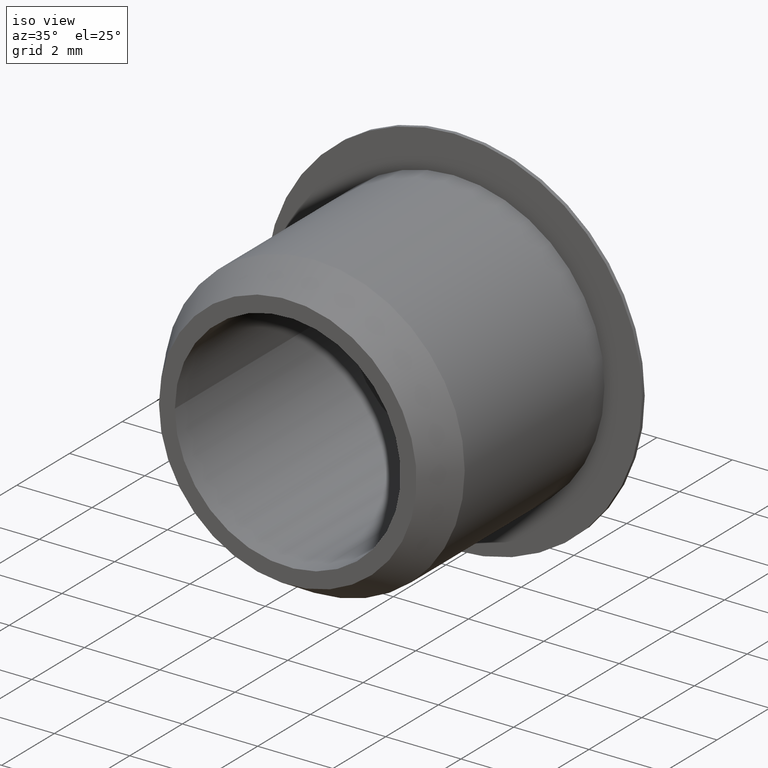
[diagram: clean part render]
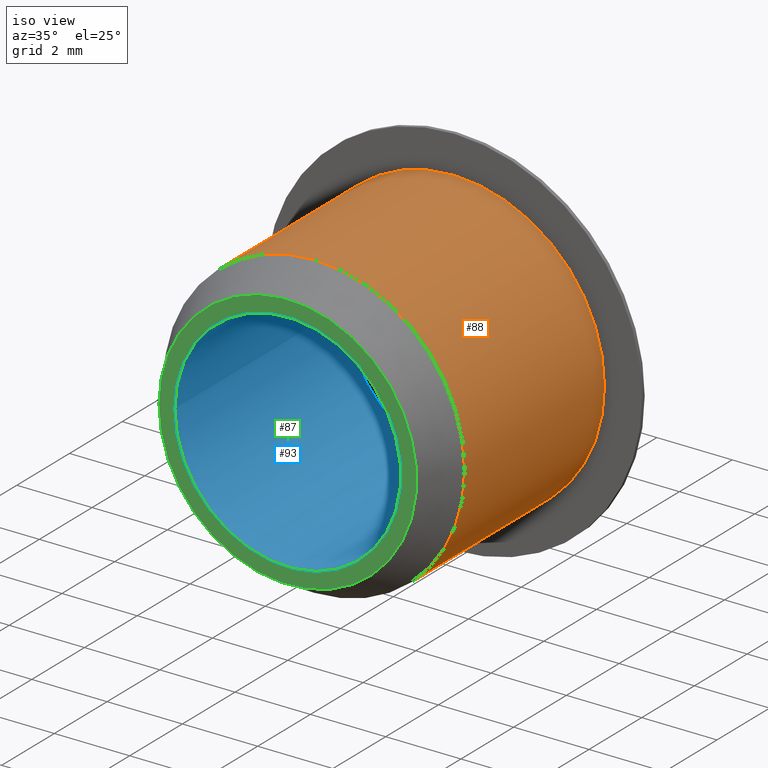
[diagram: same view with three faces highlighted in distinct colors, each labeled with its STEP entity id]
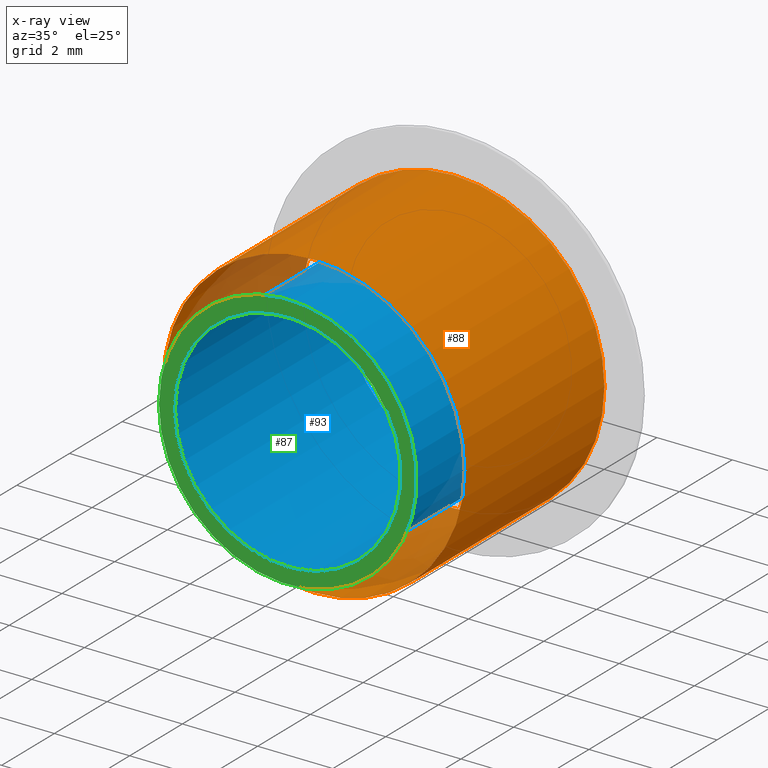
[diagram: x-ray of the same camera — body ghosted, the three highlighted faces saturated]
A machine part, iso view with three faces highlighted in distinct colors.
The next image is the same camera in x-ray (body ghosted, the three faces saturated) — at least one of them is partly hidden behind the body in this view.
Their STEP definitions:

[orange] entity #88 — the highlighted cylindrical surface (bore or boss wall) has radius 4 mm, axis along (0, 1, 0).
#16=CYLINDRICAL_SURFACE('',#101,4.);
#24=FACE_BOUND('',#41,.T.);
#30=FACE_OUTER_BOUND('',#40,.T.);
#40=EDGE_LOOP('',(#75));
#41=EDGE_LOOP('',(#76));
#51=CIRCLE('',#98,4.);
#53=CIRCLE('',#102,4.);
#58=VERTEX_POINT('',#147);
#60=VERTEX_POINT('',#153);
#65=EDGE_CURVE('',#58,#58,#51,.T.);
#67=EDGE_CURVE('',#60,#60,#53,.T.);
#75=ORIENTED_EDGE('',*,*,#67,.F.);
#76=ORIENTED_EDGE('',*,*,#65,.F.);
#88=ADVANCED_FACE('',(#30,#24),#16,.T.);
#98=AXIS2_PLACEMENT_3D('',#148,#117,#118);
#101=AXIS2_PLACEMENT_3D('',#152,#123,#124);
#102=AXIS2_PLACEMENT_3D('',#154,#125,#126);
#117=DIRECTION('center_axis',(0.,-1.,0.));
#118=DIRECTION('ref_axis',(1.,0.,0.));
#123=DIRECTION('center_axis',(0.,1.,0.));
#124=DIRECTION('ref_axis',(-1.,0.,0.));
#125=DIRECTION('center_axis',(0.,1.,0.));
#126=DIRECTION('ref_axis',(1.,0.,0.));
#147=CARTESIAN_POINT('',(-4.,1.,-4.89858719658941E-16));
#148=CARTESIAN_POINT('Origin',(0.,1.,0.));
#152=CARTESIAN_POINT('Origin',(0.,3.15,0.));
#153=CARTESIAN_POINT('',(-4.,6.3,0.));
#154=CARTESIAN_POINT('Origin',(0.,6.3,0.));

[blue] entity #93 — the highlighted cylindrical surface (bore or boss wall) has radius 3 mm, axis along (0, 1, 0).
#18=CYLINDRICAL_SURFACE('',#110,3.);
#27=FACE_BOUND('',#49,.T.);
#35=FACE_OUTER_BOUND('',#48,.T.);
#48=EDGE_LOOP('',(#83));
#49=EDGE_LOOP('',(#84));
#52=CIRCLE('',#100,3.);
#56=CIRCLE('',#109,3.);
#59=VERTEX_POINT('',#150);
#63=VERTEX_POINT('',#163);
#66=EDGE_CURVE('',#59,#59,#52,.T.);
#70=EDGE_CURVE('',#63,#63,#56,.T.);
#83=ORIENTED_EDGE('',*,*,#66,.F.);
#84=ORIENTED_EDGE('',*,*,#70,.T.);
#93=ADVANCED_FACE('',(#35,#27),#18,.F.);
#100=AXIS2_PLACEMENT_3D('',#151,#121,#122);
#109=AXIS2_PLACEMENT_3D('',#164,#139,#140);
#110=AXIS2_PLACEMENT_3D('',#165,#141,#142);
#121=DIRECTION('center_axis',(0.,1.,0.));
#122=DIRECTION('ref_axis',(1.,0.,0.));
#139=DIRECTION('center_axis',(0.,1.,0.));
#140=DIRECTION('ref_axis',(1.,0.,0.));
#141=DIRECTION('center_axis',(0.,1.,0.));
#142=DIRECTION('ref_axis',(-1.,0.,0.));
#150=CARTESIAN_POINT('',(-3.,-4.28626379701573E-16,0.));
#151=CARTESIAN_POINT('Origin',(0.,-5.55111512312578E-16,0.));
#163=CARTESIAN_POINT('',(-3.,6.5,0.));
#164=CARTESIAN_POINT('Origin',(0.,6.5,0.));
#165=CARTESIAN_POINT('Origin',(0.,3.25,0.));

[green] entity #87 — the highlighted planar face has unit normal (0, -1, 0).
#19=PLANE('',#99);
#23=FACE_BOUND('',#39,.T.);
#29=FACE_OUTER_BOUND('',#38,.T.);
#38=EDGE_LOOP('',(#73));
#39=EDGE_LOOP('',(#74));
#50=CIRCLE('',#97,3.42264973081037);
#52=CIRCLE('',#100,3.);
#57=VERTEX_POINT('',#145);
#59=VERTEX_POINT('',#150);
#64=EDGE_CURVE('',#57,#57,#50,.T.);
#66=EDGE_CURVE('',#59,#59,#52,.T.);
#73=ORIENTED_EDGE('',*,*,#64,.F.);
#74=ORIENTED_EDGE('',*,*,#66,.T.);
#87=ADVANCED_FACE('',(#29,#23),#19,.T.);
#97=AXIS2_PLACEMENT_3D('',#146,#115,#116);
#99=AXIS2_PLACEMENT_3D('',#149,#119,#120);
#100=AXIS2_PLACEMENT_3D('',#151,#121,#122);
#115=DIRECTION('center_axis',(0.,1.,0.));
#116=DIRECTION('ref_axis',(1.,0.,0.));
#119=DIRECTION('center_axis',(0.,-1.,0.));
#120=DIRECTION('ref_axis',(0.,0.,-1.));
#121=DIRECTION('center_axis',(0.,1.,0.));
#122=DIRECTION('ref_axis',(1.,0.,0.));
#145=CARTESIAN_POINT('',(-3.42264973081037,-5.55111512312578E-16,4.19153703743948E-16));
#146=CARTESIAN_POINT('Origin',(0.,-5.55111512312578E-16,0.));
#149=CARTESIAN_POINT('Origin',(-4.,-4.89858719658941E-16,0.));
#150=CARTESIAN_POINT('',(-3.,-4.28626379701573E-16,0.));
#151=CARTESIAN_POINT('Origin',(0.,-5.55111512312578E-16,0.));